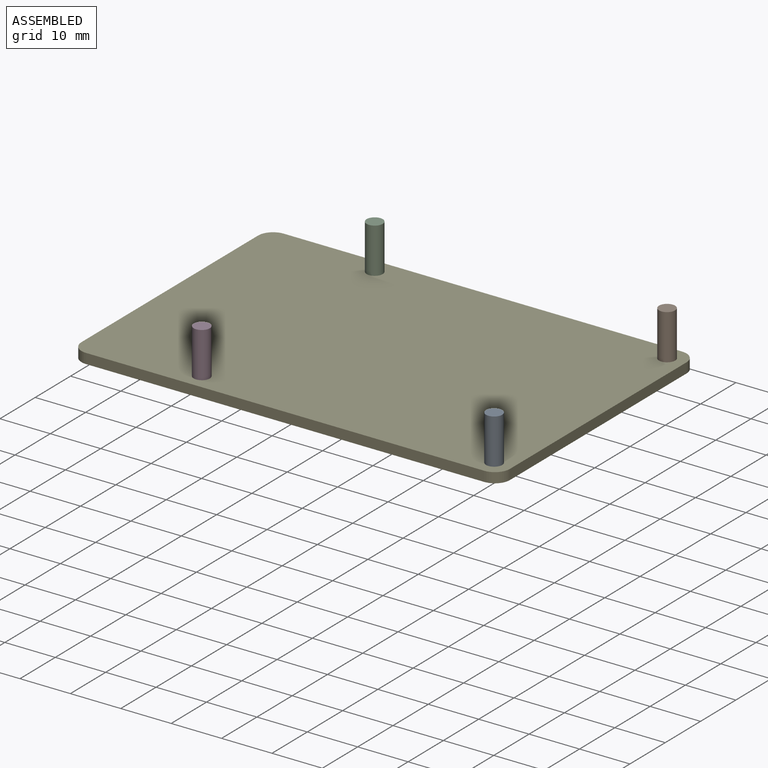
[diagram: assembled view]
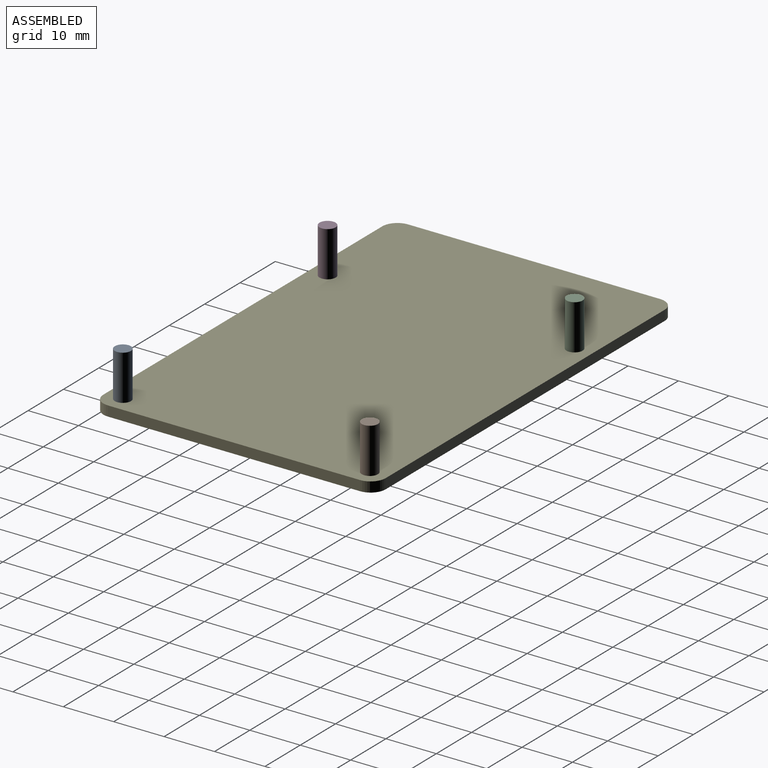
[diagram: assembled view, second angle]
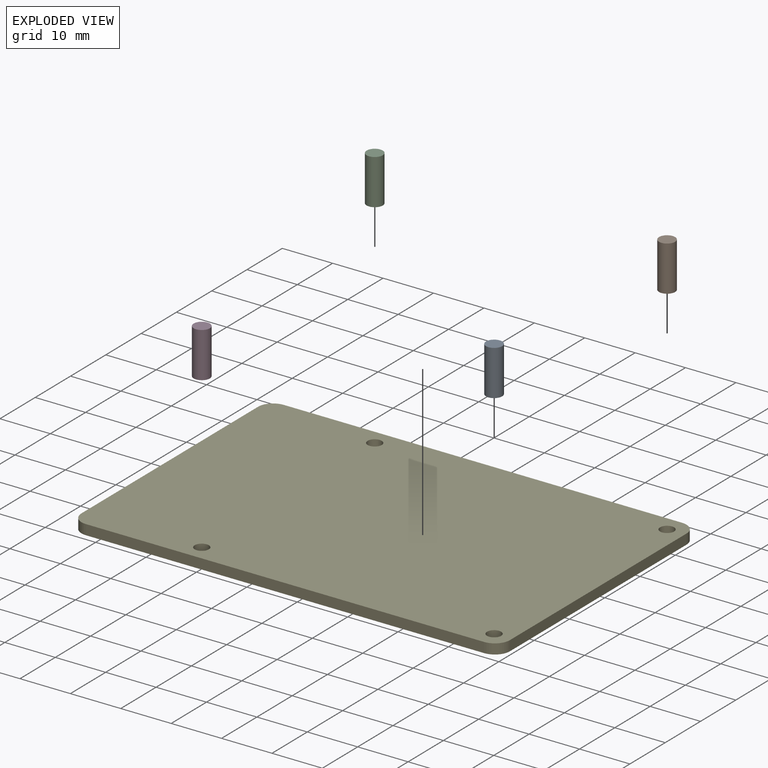
[diagram: exploded view]
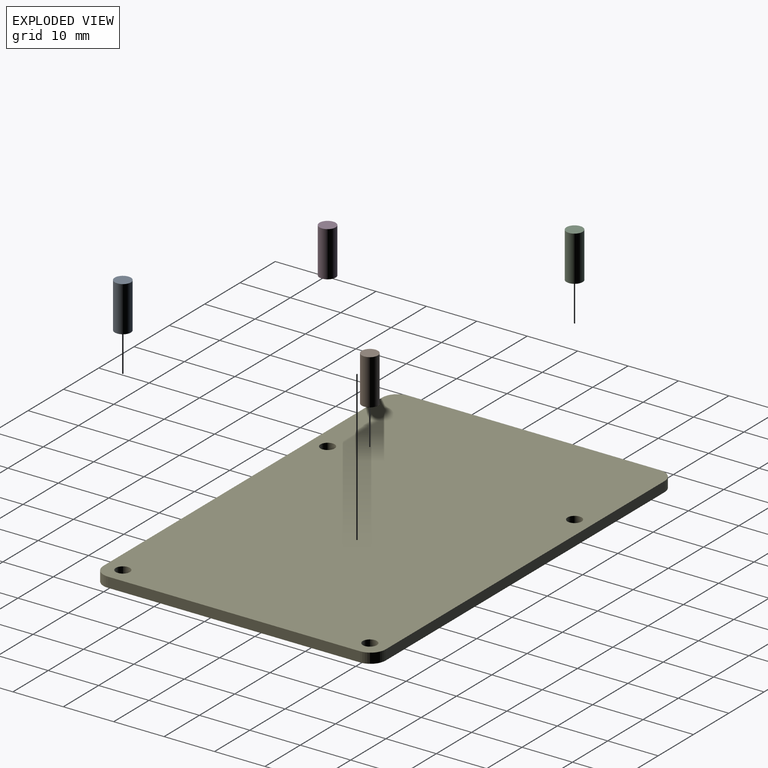
[diagram: exploded view, second angle]
ASSEMBLY  parts=5 mates=4
PART A: 3 faces, bbox 3.2x3.2x9 mm
  f0: plane 3.2x3.2mm, normal (0,0,-1), area 8mm2, adj f1
  f1: cylinder r=1.6mm len=9mm, axis (0,0,1), area 90.5mm2, adj f0,f2
  f2: plane 3.2x3.2mm, normal (0,0,1), area 8mm2, adj f1
PART B: same geometry as A
PART C: same geometry as A
PART D: same geometry as A
PART E: 14 faces, bbox 85x56x2 mm
  f0: plane 50x2mm, normal (-1,0,0), area 100mm2, adj f1,f11,f12,f13
  f1: cylinder r=3mm len=3mm, axis (0,0,-1), area 9.4mm2, adj f0,f2,f12,f13
  f2: plane 79x2mm, normal (0,-1,0), area 158mm2, adj f1,f3,f12,f13
  f3: cylinder r=3mm len=3mm, axis (0,0,-1), area 9.4mm2, adj f2,f4,f12,f13
  f4: plane 50x2mm, normal (1,0,0), area 100mm2, adj f3,f5,f12,f13
  f5: cylinder r=3mm len=3mm, axis (0,0,-1), area 9.4mm2, adj f4,f6,f12,f13
  f6: plane 79x2mm, normal (0,1,0), area 158mm2, adj f5,f11,f12,f13
  f7: cylinder r=1.4mm len=2.8mm, axis (0,0,-1), area 17.6mm2, adj f12,f13
  f8: cylinder r=1.4mm len=2.8mm, axis (0,0,-1), area 17.6mm2, adj f12,f13
  f9: cylinder r=1.4mm len=2.8mm, axis (0,0,-1), area 17.6mm2, adj f12,f13
  f10: cylinder r=1.4mm len=2.8mm, axis (0,0,-1), area 17.6mm2, adj f12,f13
  f11: cylinder r=3mm len=3mm, axis (0,0,-1), area 9.4mm2, adj f0,f6,f12,f13
  f12: plane 85x56mm, normal (0,0,1), area 4727.6mm2, adj f0,f1,f2,f3,f4,f5,f6,f7
  f13: plane 85x56mm, normal (0,0,-1), area 4727.6mm2, adj f0,f1,f2,f3,f4,f5,f6,f7
PLACE A rot(axis=(1,0,0),180deg) t=(64.41,-52.01,15.82)mm
PLACE B rot(axis=(1,0,0),180deg) t=(64.41,-3.01,15.82)mm
PLACE C rot(axis=(1,0,0),180deg) t=(6.41,-3.01,15.82)mm
PLACE D rot(axis=(1,0,0),180deg) t=(6.41,-52.01,15.82)mm
PLACE E t=(-11.42,-3.38,3.82)mm
MATE fastened A.f1 <-> E.f9  axis (0,0,-1) through (27.58,-27.88,5.82)mm
MATE fastened B.f1 <-> E.f10  axis (0,0,-1) through (27.58,21.12,5.82)mm
MATE fastened C.f1 <-> E.f7  axis (0,0,-1) through (-30.42,21.12,5.82)mm
MATE fastened D.f1 <-> E.f8  axis (0,0,-1) through (-30.42,-27.88,5.82)mm
